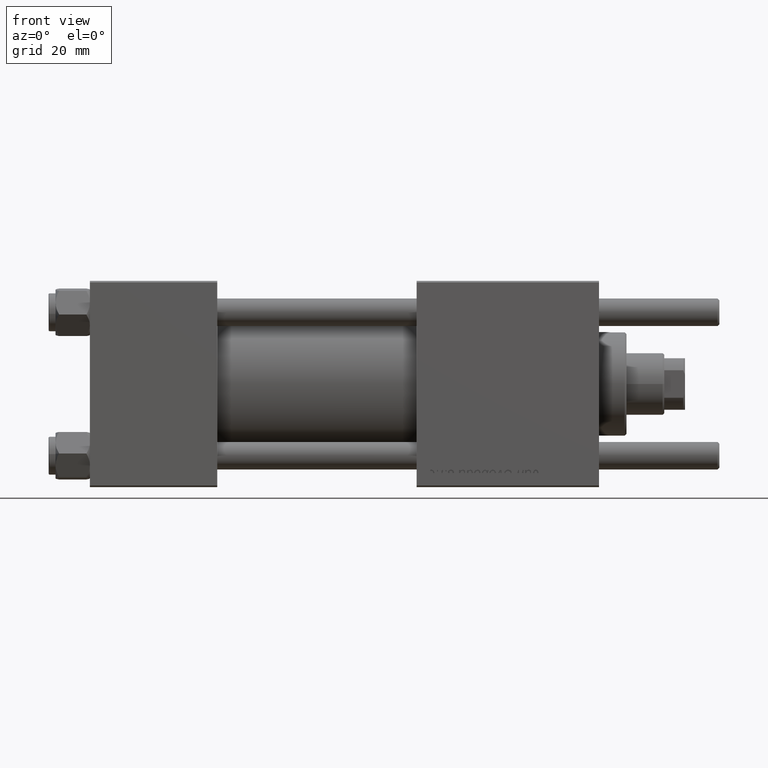
[diagram: clean part render]
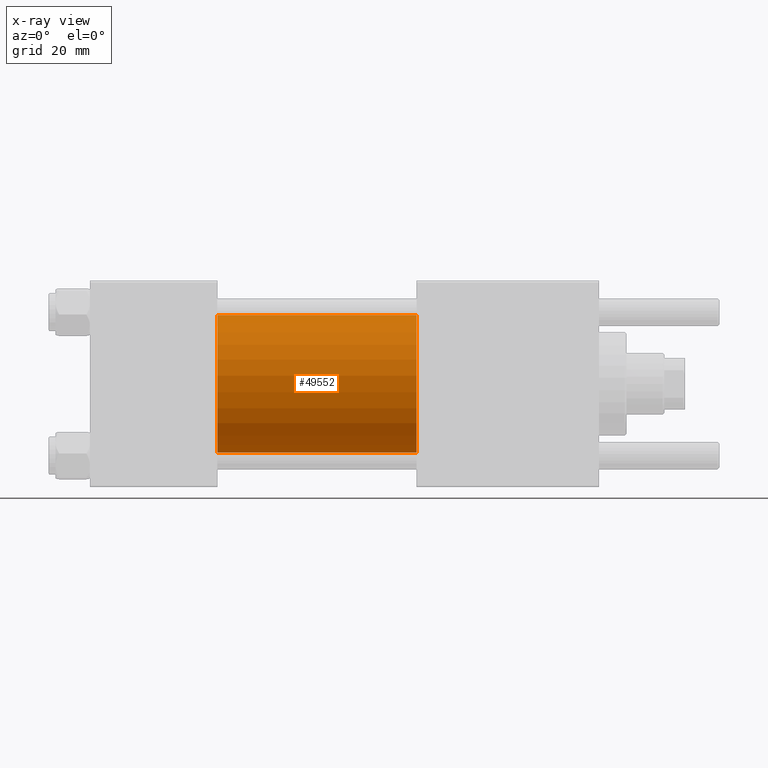
[diagram: x-ray — body ghosted, one internal face saturated and labeled with its STEP entity id]
A machine part, front view, then the same camera in x-ray: the body is ghosted and one INTERNAL B-rep face — a face not visible from any outside direction — is saturated and labeled: STEP entity #49552.
In plain terms, the highlighted cylindrical surface (partial cylindrical patch) has radius 20 mm, axis along (-1, -0, -0).
Its self-contained STEP definition (entity closure, byte-faithful):
#2986 = CYLINDRICAL_SURFACE ( 'NONE', #47562, 20.00000000000000000 ) ;
#3913 = EDGE_CURVE ( 'NONE', #8603, #8844, #44603, .T. ) ;
#4057 = CARTESIAN_POINT ( 'NONE',  ( 95.00000000000000000, -2.602085213965210642E-15, 0.000000000000000000 ) ) ;
#4784 = ORIENTED_EDGE ( 'NONE', *, *, #50562, .F. ) ;
#6482 = LINE ( 'NONE', #36683, #39654 ) ;
#6844 = EDGE_CURVE ( 'NONE', #8603, #13553, #16688, .T. ) ;
#7330 = DIRECTION ( 'NONE',  ( -1.000000000000000000, -0.000000000000000000, -0.000000000000000000 ) ) ;
#8603 = VERTEX_POINT ( 'NONE', #10524 ) ;
#8610 = EDGE_CURVE ( 'NONE', #13553, #47537, #6482, .T. ) ;
#8844 = VERTEX_POINT ( 'NONE', #53281 ) ;
#9279 = EDGE_LOOP ( 'NONE', ( #38117, #52202, #4784, #19346 ) ) ;
#10524 = CARTESIAN_POINT ( 'NONE',  ( 95.00000000000000000, -2.602085213965210642E-15, 20.00000000000000000 ) ) ;
#13192 = CARTESIAN_POINT ( 'NONE',  ( 37.00000000000000000, -1.527916156705046464E-16, -20.00000000000000000 ) ) ;
#13267 = DIRECTION ( 'NONE',  ( 1.000000000000000000, 0.000000000000000000, 0.000000000000000000 ) ) ;
#13553 = VERTEX_POINT ( 'NONE', #16748 ) ;
#16688 = CIRCLE ( 'NONE', #35027, 20.00000000000000000 ) ;
#16748 = CARTESIAN_POINT ( 'NONE',  ( 95.00000000000000000, -1.527916156705046464E-16, -20.00000000000000000 ) ) ;
#16876 = DIRECTION ( 'NONE',  ( 1.000000000000000000, 0.000000000000000000, 0.000000000000000000 ) ) ;
#19346 = ORIENTED_EDGE ( 'NONE', *, *, #3913, .F. ) ;
#21203 = VECTOR ( 'NONE', #51300, 1000.000000000000000 ) ;
#29444 = FACE_OUTER_BOUND ( 'NONE', #9279, .T. ) ;
#30173 = AXIS2_PLACEMENT_3D ( 'NONE', #48171, #16876, #39852 ) ;
#34093 = CARTESIAN_POINT ( 'NONE',  ( 95.00000000000000000, -2.602085213965210642E-15, 20.00000000000000000 ) ) ;
#35027 = AXIS2_PLACEMENT_3D ( 'NONE', #4057, #13267, #48315 ) ;
#36683 = CARTESIAN_POINT ( 'NONE',  ( 95.00000000000000000, -1.527916156705046464E-16, -20.00000000000000000 ) ) ;
#38117 = ORIENTED_EDGE ( 'NONE', *, *, #6844, .T. ) ;
#39654 = VECTOR ( 'NONE', #7330, 1000.000000000000000 ) ;
#39852 = DIRECTION ( 'NONE',  ( 0.000000000000000000, 0.000000000000000000, -1.000000000000000000 ) ) ;
#42105 = CIRCLE ( 'NONE', #30173, 20.00000000000000000 ) ;
#43227 = DIRECTION ( 'NONE',  ( -1.000000000000000000, -0.000000000000000000, -0.000000000000000000 ) ) ;
#43503 = DIRECTION ( 'NONE',  ( 0.000000000000000000, 0.000000000000000000, 1.000000000000000000 ) ) ;
#44603 = LINE ( 'NONE', #34093, #21203 ) ;
#47531 = CARTESIAN_POINT ( 'NONE',  ( 95.00000000000000000, -2.602085213965210642E-15, 0.000000000000000000 ) ) ;
#47537 = VERTEX_POINT ( 'NONE', #13192 ) ;
#47562 = AXIS2_PLACEMENT_3D ( 'NONE', #47531, #43227, #43503 ) ;
#48171 = CARTESIAN_POINT ( 'NONE',  ( 37.00000000000000000, -2.602085213965210642E-15, 0.000000000000000000 ) ) ;
#48315 = DIRECTION ( 'NONE',  ( 0.000000000000000000, 0.000000000000000000, -1.000000000000000000 ) ) ;
#49552 = ADVANCED_FACE ( 'NONE', ( #29444 ), #2986, .F. ) ;
#50562 = EDGE_CURVE ( 'NONE', #8844, #47537, #42105, .T. ) ;
#51300 = DIRECTION ( 'NONE',  ( -1.000000000000000000, -0.000000000000000000, -0.000000000000000000 ) ) ;
#52202 = ORIENTED_EDGE ( 'NONE', *, *, #8610, .T. ) ;
#53281 = CARTESIAN_POINT ( 'NONE',  ( 37.00000000000000000, -2.602085213965210642E-15, 20.00000000000000000 ) ) ;